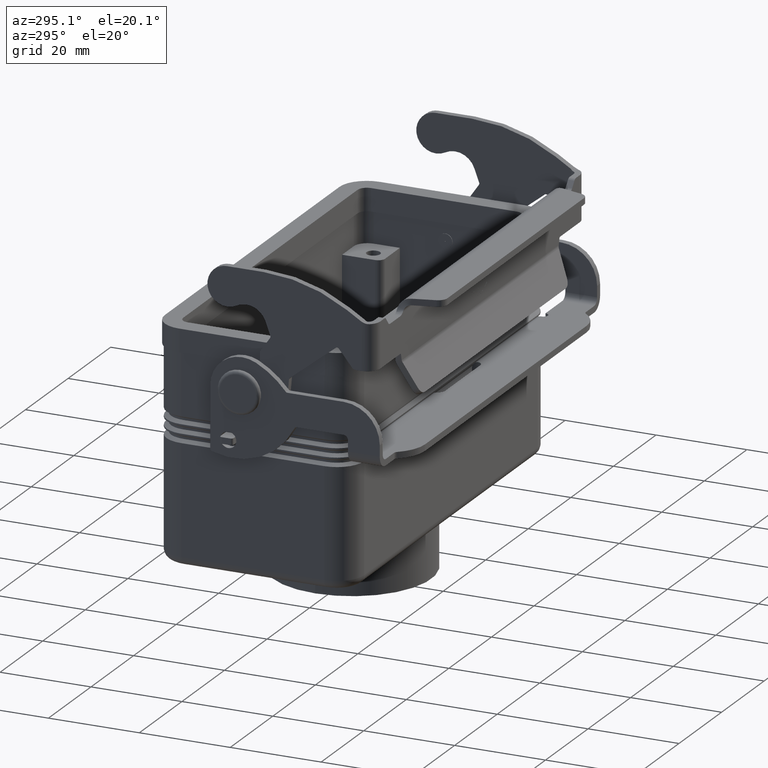
[diagram: clean part render]
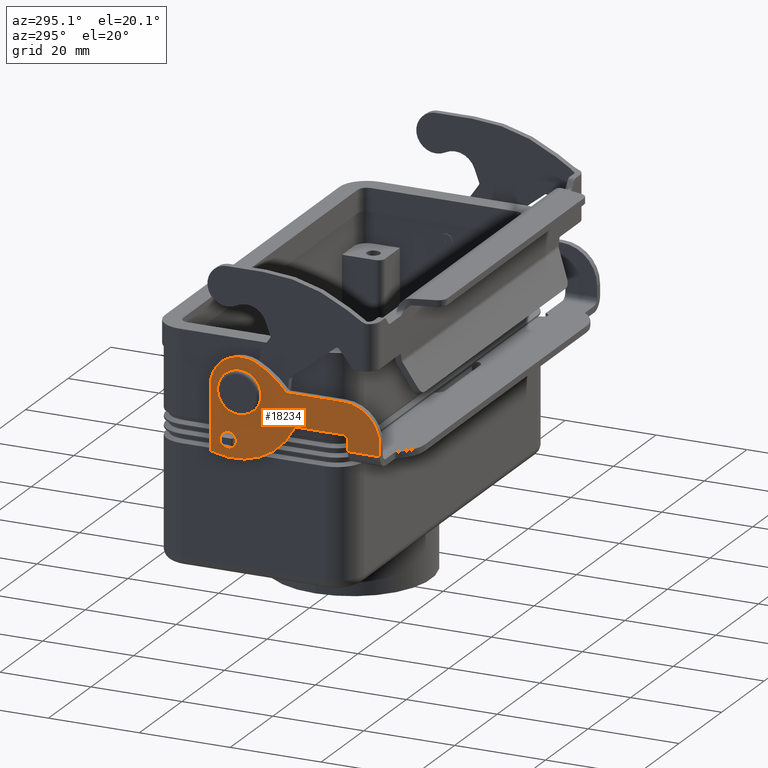
[diagram: same view with one face highlighted and labeled with its STEP entity id]
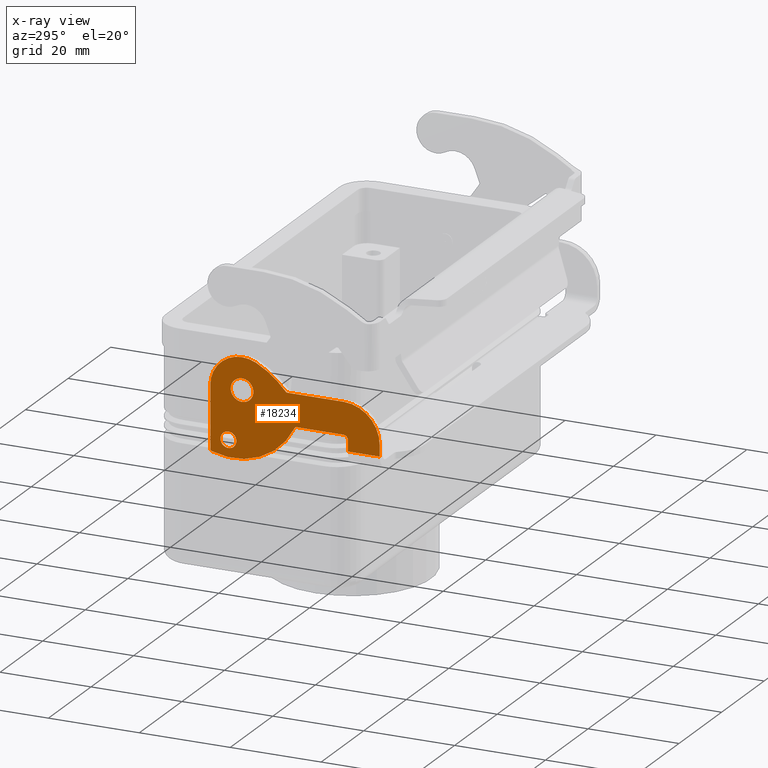
[diagram: x-ray of the same camera — body ghosted, the highlighted face saturated]
A machine part, auxiliary view. The second image highlights one B-rep face of the part: STEP entity #18234.
The next image is the same camera in x-ray: the body ghosted, the highlighted face saturated — about 0% of this face is hidden behind the body in this view.
In plain terms, the highlighted planar face has unit normal (1, 0, 0).
Its self-contained STEP definition (entity closure, byte-faithful):
#7458=CARTESIAN_POINT('',(-51.749999999999986,1.250000000000002,-11.0));
#7459=VERTEX_POINT('',#7458);
#7475=CARTESIAN_POINT('',(-51.750000000000000,4.750000000000002,-11.0));
#7476=VERTEX_POINT('',#7475);
#7483=CARTESIAN_POINT('',(-51.749999999999986,3.000000000000002,-11.0));
#7484=DIRECTION('',(1.0,0.0,0.0));
#7485=DIRECTION('',(0.0,-1.0,0.0));
#7486=AXIS2_PLACEMENT_3D('',#7483,#7484,#7485);
#7487=CIRCLE('',#7486,1.750000000000000);
#7488=EDGE_CURVE('',#7459,#7476,#7487,.T.);
#8807=CARTESIAN_POINT('',(-51.749999999999986,-3.061516E-016,2.500000000000000));
#8808=VERTEX_POINT('',#8807);
#8817=CARTESIAN_POINT('',(-51.750000000000000,2.500000000000000,3.061516E-016));
#8818=VERTEX_POINT('',#8817);
#8819=CARTESIAN_POINT('',(-51.749999999999986,0.0,0.0));
#8820=DIRECTION('',(1.0,0.0,0.0));
#8821=DIRECTION('',(0.0,-1.0,0.0));
#8822=AXIS2_PLACEMENT_3D('',#8819,#8820,#8821);
#8823=CIRCLE('',#8822,2.500000000000000);
#8824=EDGE_CURVE('',#8818,#8808,#8823,.T.);
#8826=CARTESIAN_POINT('',(-51.749999999999986,3.061516E-016,-2.500000000000000));
#8827=VERTEX_POINT('',#8826);
#8828=CARTESIAN_POINT('',(-51.749999999999986,0.0,0.0));
#8829=DIRECTION('',(1.0,0.0,0.0));
#8830=DIRECTION('',(0.0,-1.0,0.0));
#8831=AXIS2_PLACEMENT_3D('',#8828,#8829,#8830);
#8832=CIRCLE('',#8831,2.500000000000000);
#8833=EDGE_CURVE('',#8827,#8818,#8832,.T.);
#13212=CARTESIAN_POINT('',(-51.749999999999986,0.0,0.0));
#13213=DIRECTION('',(1.0,0.0,0.0));
#13214=DIRECTION('',(0.0,-1.0,0.0));
#13215=AXIS2_PLACEMENT_3D('',#13212,#13213,#13214);
#13216=CIRCLE('',#13215,2.500000000000000);
#13217=EDGE_CURVE('',#8808,#8827,#13216,.T.);
#17906=CARTESIAN_POINT('',(-51.750000000000014,-23.299999999999990,-9.416637302590747));
#17907=VERTEX_POINT('',#17906);
#17916=CARTESIAN_POINT('',(-51.750000000000014,-30.299999999999994,-9.416637302590750));
#17917=VERTEX_POINT('',#17916);
#17925=CARTESIAN_POINT('',(-51.750000000000014,-23.299999999999990,-9.416637302590747));
#17926=DIRECTION('',(0.0,-1.0,0.0));
#17927=VECTOR('',#17926,7.000000000000004);
#17928=LINE('',#17925,#17927);
#17929=EDGE_CURVE('',#17907,#17917,#17928,.T.);
#18101=CARTESIAN_POINT('',(-51.749999999999986,-19.004513797970823,-21.939660693791012));
#18102=DIRECTION('',(1.0,0.0,0.0));
#18103=DIRECTION('',(0.0,0.0,-1.0));
#18104=AXIS2_PLACEMENT_3D('',#18101,#18102,#18103);
#18105=PLANE('',#18104);
#18106=ORIENTED_EDGE('',*,*,#17929,.T.);
#18107=CARTESIAN_POINT('',(-51.750000000000000,-30.299999999999994,-7.000000000000009));
#18108=VERTEX_POINT('',#18107);
#18109=CARTESIAN_POINT('',(-51.750000000000014,-30.299999999999994,-9.416637302590750));
#18110=DIRECTION('',(0.0,0.0,1.0));
#18111=VECTOR('',#18110,2.416637302590742);
#18112=LINE('',#18109,#18111);
#18113=EDGE_CURVE('',#17917,#18108,#18112,.T.);
#18114=ORIENTED_EDGE('',*,*,#18113,.T.);
#18115=CARTESIAN_POINT('',(-51.750000000000000,-22.299999999999997,0.999999999999995));
#18116=VERTEX_POINT('',#18115);
#18117=CARTESIAN_POINT('',(-51.750000000000000,-22.299999999999997,-7.000000000000005));
#18118=DIRECTION('',(-1.0,0.0,0.0));
#18119=DIRECTION('',(0.0,0.0,-1.0));
#18120=AXIS2_PLACEMENT_3D('',#18117,#18118,#18119);
#18121=CIRCLE('',#18120,8.0);
#18122=EDGE_CURVE('',#18108,#18116,#18121,.T.);
#18123=ORIENTED_EDGE('',*,*,#18122,.T.);
#18124=CARTESIAN_POINT('',(-51.750000000000000,-10.0,0.999999999999996));
#18125=VERTEX_POINT('',#18124);
#18126=CARTESIAN_POINT('',(-51.750000000000000,-22.299999999999997,0.999999999999995));
#18127=DIRECTION('',(0.0,1.0,0.0));
#18128=VECTOR('',#18127,12.299999999999997);
#18129=LINE('',#18126,#18128);
#18130=EDGE_CURVE('',#18116,#18125,#18129,.T.);
#18131=ORIENTED_EDGE('',*,*,#18130,.T.);
#18132=CARTESIAN_POINT('',(-51.750000000000000,-9.617140601538257,1.178412249907570));
#18133=VERTEX_POINT('',#18132);
#18134=CARTESIAN_POINT('',(-51.750000000000000,-10.0,1.499999999999995));
#18135=DIRECTION('',(1.0,0.0,0.0));
#18136=DIRECTION('',(0.0,0.0,-1.0));
#18137=AXIS2_PLACEMENT_3D('',#18134,#18135,#18136);
#18138=CIRCLE('',#18137,0.500000000000000);
#18139=EDGE_CURVE('',#18125,#18133,#18138,.T.);
#18140=ORIENTED_EDGE('',*,*,#18139,.T.);
#18141=CARTESIAN_POINT('',(-51.750000000000000,-3.067742104501612,6.291975713579001));
#18142=VERTEX_POINT('',#18141);
#18143=CARTESIAN_POINT('',(-51.750000000000000,5.697235336931570,-11.685097753789577));
#18144=DIRECTION('',(-1.000000000000000,0.0,0.0));
#18145=DIRECTION('',(0.0,0.438248872071659,-0.898853673368429));
#18146=AXIS2_PLACEMENT_3D('',#18143,#18144,#18145);
#18147=CIRCLE('',#18146,20.0);
#18148=EDGE_CURVE('',#18133,#18142,#18147,.T.);
#18149=ORIENTED_EDGE('',*,*,#18148,.T.);
#18150=CARTESIAN_POINT('',(-51.750000000000000,7.000000000000002,0.0));
#18151=VERTEX_POINT('',#18150);
#18152=CARTESIAN_POINT('',(-51.750000000000000,0.0,0.0));
#18153=DIRECTION('',(-1.0,0.0,0.0));
#18154=DIRECTION('',(0.0,-1.0,0.0));
#18155=AXIS2_PLACEMENT_3D('',#18152,#18153,#18154);
#18156=CIRCLE('',#18155,7.000000000000002);
#18157=EDGE_CURVE('',#18142,#18151,#18156,.T.);
#18158=ORIENTED_EDGE('',*,*,#18157,.T.);
#18159=CARTESIAN_POINT('',(-51.750000000000000,7.000000000000002,-13.499999999999996));
#18160=VERTEX_POINT('',#18159);
#18161=CARTESIAN_POINT('',(-51.750000000000000,7.000000000000002,0.0));
#18162=DIRECTION('',(0.0,0.0,-1.0));
#18163=VECTOR('',#18162,13.499999999999996);
#18164=LINE('',#18161,#18163);
#18165=EDGE_CURVE('',#18151,#18160,#18164,.T.);
#18166=ORIENTED_EDGE('',*,*,#18165,.T.);
#18167=CARTESIAN_POINT('',(-51.750000000000000,6.657059800507444,-13.974691709496343));
#18168=VERTEX_POINT('',#18167);
#18169=CARTESIAN_POINT('',(-51.750000000000000,6.500000000000004,-13.499999999999996));
#18170=DIRECTION('',(-1.000000000000000,0.0,0.0));
#18171=DIRECTION('',(0.0,-0.314119601014879,0.949383418992692));
#18172=AXIS2_PLACEMENT_3D('',#18169,#18170,#18171);
#18173=CIRCLE('',#18172,0.500000000000000);
#18174=EDGE_CURVE('',#18160,#18168,#18173,.T.);
#18175=ORIENTED_EDGE('',*,*,#18174,.T.);
#18176=CARTESIAN_POINT('',(-51.750000000000000,-11.550152716603737,-6.281740013696973));
#18177=VERTEX_POINT('',#18176);
#18178=CARTESIAN_POINT('',(-51.750000000000000,1.945265785284223,0.266059575394024));
#18179=DIRECTION('',(-1.000000000000000,0.0,0.0));
#18180=DIRECTION('',(0.0,0.899694566792531,0.436519972606066));
#18181=AXIS2_PLACEMENT_3D('',#18178,#18179,#18180);
#18182=CIRCLE('',#18181,15.0);
#18183=EDGE_CURVE('',#18168,#18177,#18182,.T.);
#18184=ORIENTED_EDGE('',*,*,#18183,.T.);
#18185=CARTESIAN_POINT('',(-51.750000000000000,-12.0,-6.000000000000005));
#18186=VERTEX_POINT('',#18185);
#18187=CARTESIAN_POINT('',(-51.750000000000000,-12.0,-6.500000000000005));
#18188=DIRECTION('',(1.0,0.0,0.0));
#18189=DIRECTION('',(0.0,0.899694566792530,0.436519972606068));
#18190=AXIS2_PLACEMENT_3D('',#18187,#18188,#18189);
#18191=CIRCLE('',#18190,0.500000000000000);
#18192=EDGE_CURVE('',#18177,#18186,#18191,.T.);
#18193=ORIENTED_EDGE('',*,*,#18192,.T.);
#18194=CARTESIAN_POINT('',(-51.750000000000000,-22.299999999999997,-6.000000000000007));
#18195=VERTEX_POINT('',#18194);
#18196=CARTESIAN_POINT('',(-51.750000000000000,-12.0,-6.000000000000005));
#18197=DIRECTION('',(0.0,-1.0,0.0));
#18198=VECTOR('',#18197,10.299999999999997);
#18199=LINE('',#18196,#18198);
#18200=EDGE_CURVE('',#18186,#18195,#18199,.T.);
#18201=ORIENTED_EDGE('',*,*,#18200,.T.);
#18202=CARTESIAN_POINT('',(-51.750000000000000,-23.299999999999990,-7.000000000000011));
#18203=VERTEX_POINT('',#18202);
#18204=CARTESIAN_POINT('',(-51.750000000000000,-22.299999999999997,-7.000000000000010));
#18205=DIRECTION('',(1.0,0.0,0.0));
#18206=DIRECTION('',(0.0,0.0,1.0));
#18207=AXIS2_PLACEMENT_3D('',#18204,#18205,#18206);
#18208=CIRCLE('',#18207,1.0);
#18209=EDGE_CURVE('',#18195,#18203,#18208,.T.);
#18210=ORIENTED_EDGE('',*,*,#18209,.T.);
#18211=CARTESIAN_POINT('',(-51.750000000000000,-23.299999999999990,-7.000000000000011));
#18212=DIRECTION('',(0.0,0.0,-1.0));
#18213=VECTOR('',#18212,2.416637302590736);
#18214=LINE('',#18211,#18213);
#18215=EDGE_CURVE('',#18203,#17907,#18214,.T.);
#18216=ORIENTED_EDGE('',*,*,#18215,.T.);
#18217=EDGE_LOOP('',(#18106,#18114,#18123,#18131,#18140,#18149,#18158,#18166,#18175,#18184,#18193,#18201,#18210,#18216));
#18218=FACE_OUTER_BOUND('',#18217,.T.);
#18219=ORIENTED_EDGE('',*,*,#8824,.T.);
#18220=ORIENTED_EDGE('',*,*,#13217,.T.);
#18221=ORIENTED_EDGE('',*,*,#8833,.T.);
#18222=EDGE_LOOP('',(#18219,#18220,#18221));
#18223=FACE_BOUND('',#18222,.T.);
#18224=CARTESIAN_POINT('',(-51.749999999999986,3.000000000000002,-11.0));
#18225=DIRECTION('',(1.0,0.0,0.0));
#18226=DIRECTION('',(0.0,-1.0,0.0));
#18227=AXIS2_PLACEMENT_3D('',#18224,#18225,#18226);
#18228=CIRCLE('',#18227,1.750000000000000);
#18229=EDGE_CURVE('',#7476,#7459,#18228,.T.);
#18230=ORIENTED_EDGE('',*,*,#18229,.T.);
#18231=ORIENTED_EDGE('',*,*,#7488,.T.);
#18232=EDGE_LOOP('',(#18230,#18231));
#18233=FACE_BOUND('',#18232,.T.);
#18234=ADVANCED_FACE('',(#18218,#18223,#18233),#18105,.F.);